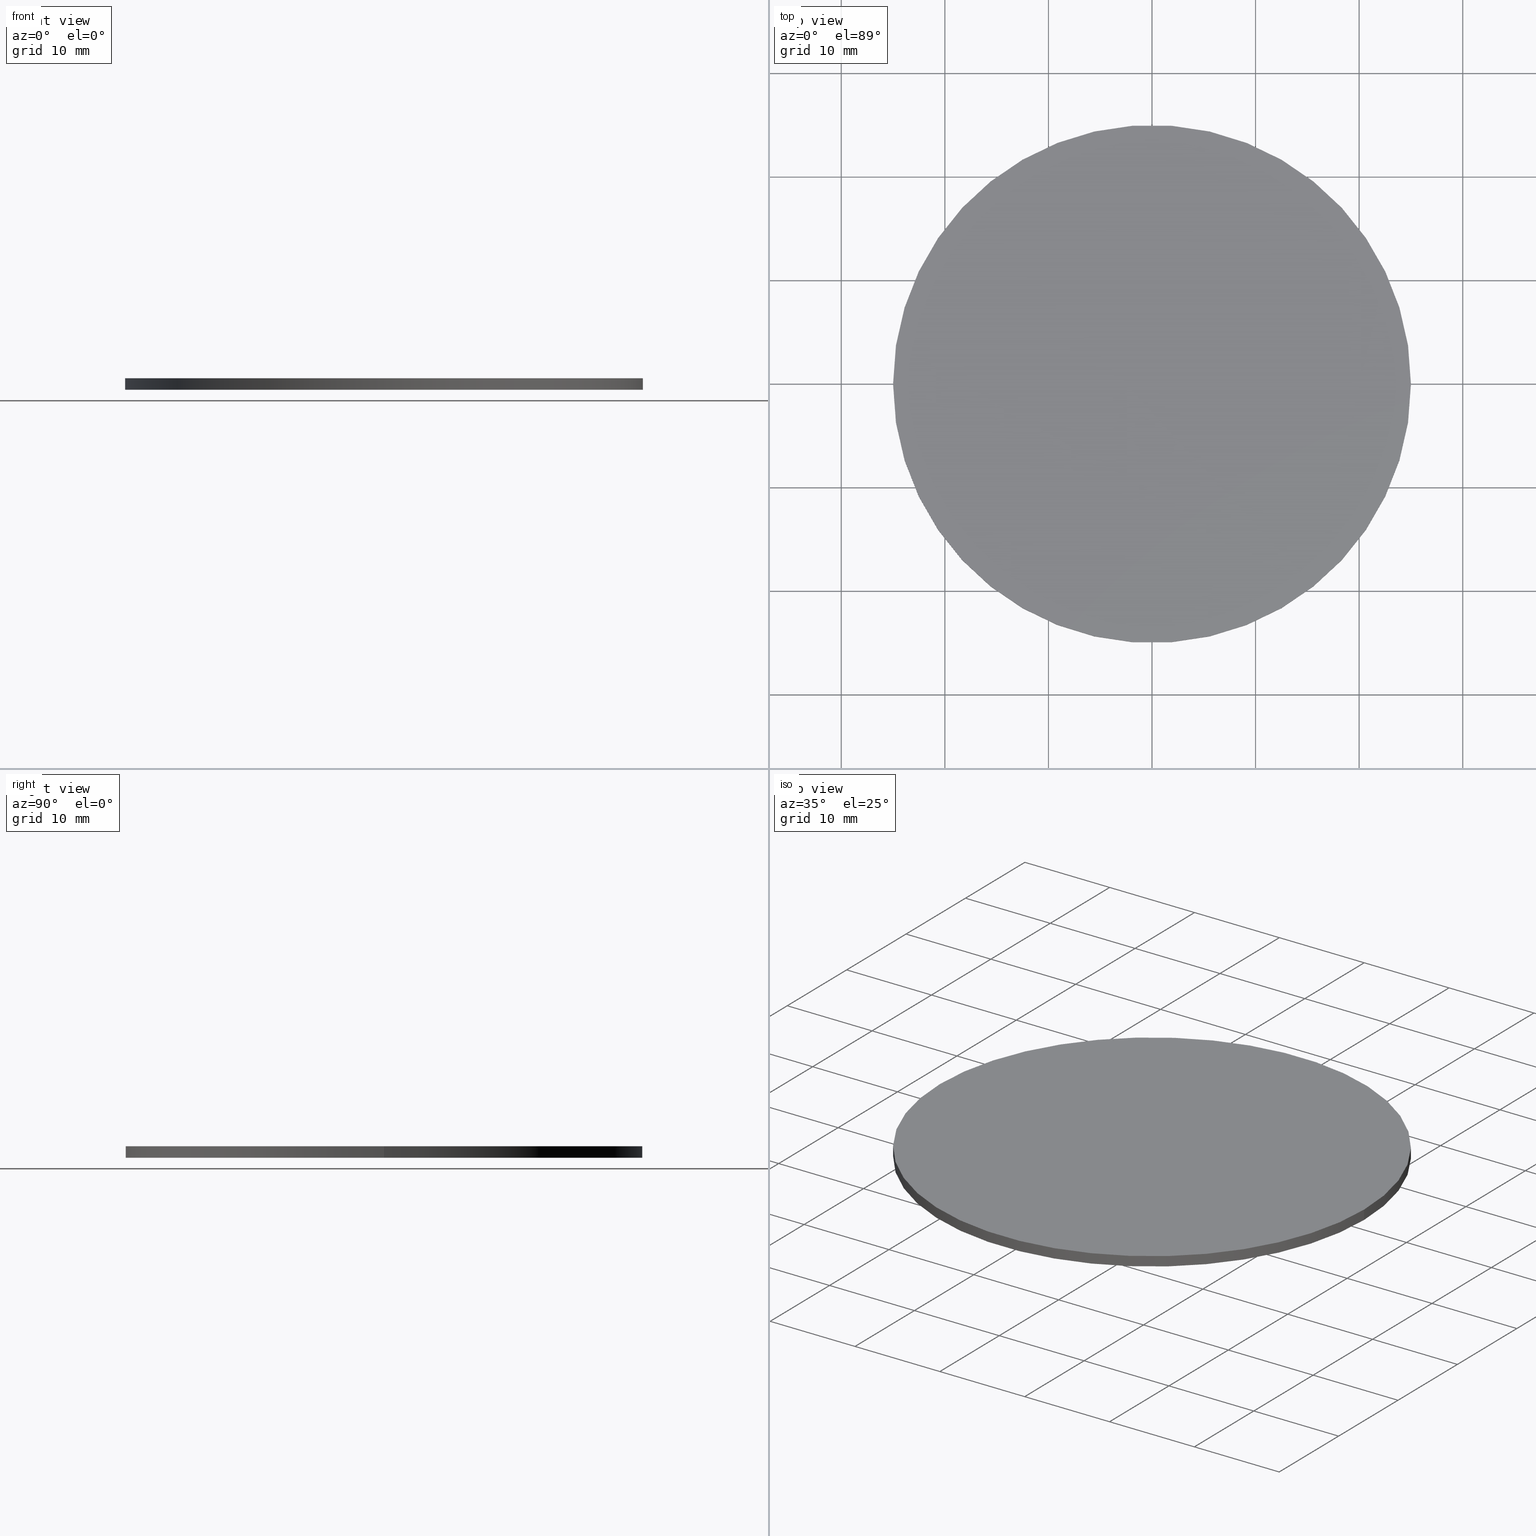
[diagram: canonical four-view strip — front | top / right | iso, engineering-drawing reading convention]
A machine part, canonical four-view strip (front | top / right | iso — engineering-drawing reading convention). The complete STEP part file that produces these views, byte-faithful:
ISO-10303-21;
HEADER;
FILE_DESCRIPTION (( 'STEP AP203' ),
    '1' );
FILE_NAME ('348510.STEP',
    '2019-07-31T07:52:57',
    ( '' ),
    ( '' ),
    'SwSTEP 2.0',
    'SolidWorks 2016',
    '' );
FILE_SCHEMA (( 'CONFIG_CONTROL_DESIGN' ));
ENDSEC;

DATA;
#1 = PERSON_AND_ORGANIZATION ( #188, #175 ) ;
#2 = DATE_AND_TIME ( #154, #213 ) ;
#3 = APPROVAL_DATE_TIME ( #151, #61 ) ;
#4 = ADVANCED_FACE ( 'NONE', ( #15 ), #6, .T. ) ;
#5 = PERSON_AND_ORGANIZATION ( #188, #175 ) ;
#6 = CYLINDRICAL_SURFACE ( 'NONE', #142, 25.00000000000000000 ) ;
#7 = DIRECTION ( 'NONE',  ( 1.000000000000000000, 0.0000000000000000000, 0.0000000000000000000 ) ) ;
#8 = APPROVAL_STATUS ( 'not_yet_approved' ) ;
#9 = DATE_AND_TIME ( #172, #187 ) ;
#10 = APPLICATION_PROTOCOL_DEFINITION ( 'international standard', 'config_control_design', 1994, #119 ) ;
#11 = VERTEX_POINT ( 'NONE', #240 ) ;
#12 = APPLICATION_PROTOCOL_DEFINITION ( 'international standard', 'config_control_design', 1994, #164 ) ;
#13 = CALENDAR_DATE ( 2019, 31, 7 ) ;
#14 = LINE ( 'NONE', #158, #18 ) ;
#15 = FACE_OUTER_BOUND ( 'NONE', #99, .T. ) ;
#16 = PRODUCT_DEFINITION_SHAPE ( 'NONE', 'NONE',  #26 ) ;
#17 = APPROVAL_PERSON_ORGANIZATION ( #149, #123, #180 ) ;
#18 = VECTOR ( 'NONE', #138, 1000.000000000000000 ) ;
#19 = EDGE_CURVE ( 'NONE', #111, #214, #25, .T. ) ;
#20 = DIRECTION ( 'NONE',  ( 0.0000000000000000000, 0.0000000000000000000, 1.000000000000000000 ) ) ;
#21 = PERSON_AND_ORGANIZATION ( #188, #175 ) ;
#22 = CC_DESIGN_APPROVAL ( #229, ( #26 ) ) ;
#23 = CARTESIAN_POINT ( 'NONE',  ( -25.00000000000000000, 0.0000000000000000000, 1.100000000000000100 ) ) ;
#24 = MECHANICAL_CONTEXT ( 'NONE', #49, 'mechanical' ) ;
#25 = LINE ( 'NONE', #23, #58 ) ;
#26 = PRODUCT_DEFINITION ( 'δ֪', '', #100, #118 ) ;
#27 = CARTESIAN_POINT ( 'NONE',  ( 0.0000000000000000000, 0.0000000000000000000, 0.0000000000000000000 ) ) ;
#28 = APPROVAL_ROLE ( '' ) ;
#29 = APPROVAL_STATUS ( 'not_yet_approved' ) ;
#30 = COORDINATED_UNIVERSAL_TIME_OFFSET ( 8, 0, .AHEAD. ) ;
#31 = LOCAL_TIME ( 15, 52, 57.00000000000000000, #37 ) ;
#32 = CC_DESIGN_PERSON_AND_ORGANIZATION_ASSIGNMENT ( #21, #246, ( #195 ) ) ;
#33 = CALENDAR_DATE ( 2019, 31, 7 ) ;
#34 = CC_DESIGN_PERSON_AND_ORGANIZATION_ASSIGNMENT ( #252, #167, ( #26 ) ) ;
#35 = CC_DESIGN_PERSON_AND_ORGANIZATION_ASSIGNMENT ( #76, #207, ( #74 ) ) ;
#36 = CALENDAR_DATE ( 2019, 31, 7 ) ;
#37 = COORDINATED_UNIVERSAL_TIME_OFFSET ( 8, 0, .AHEAD. ) ;
#38 = AXIS2_PLACEMENT_3D ( 'NONE', #27, #183, #226 ) ;
#39 = CALENDAR_DATE ( 2019, 31, 7 ) ;
#40 = ORIENTED_EDGE ( 'NONE', *, *, #19, .F. ) ;
#41 = CARTESIAN_POINT ( 'NONE',  ( -25.00000000000000000, 0.0000000000000000000, 0.0000000000000000000 ) ) ;
#42 = CC_DESIGN_PERSON_AND_ORGANIZATION_ASSIGNMENT ( #5, #224, ( #126 ) ) ;
#43 = PLANE ( 'NONE',  #38 ) ;
#44 = DESIGN_CONTEXT ( 'detailed design', #119, 'design' ) ;
#45 = ADVANCED_FACE ( 'NONE', ( #82 ), #133, .T. ) ;
#46 = PERSON_AND_ORGANIZATION ( #188, #175 ) ;
#47 = DIRECTION ( 'NONE',  ( 1.000000000000000000, 0.0000000000000000000, -0.0000000000000000000 ) ) ;
#48 = COORDINATED_UNIVERSAL_TIME_OFFSET ( 8, 0, .AHEAD. ) ;
#49 = APPLICATION_CONTEXT ( 'configuration controlled 3d designs of mechanical parts and assemblies' ) ;
#50 = EDGE_LOOP ( 'NONE', ( #242, #248 ) ) ;
#51 = DATE_TIME_ROLE ( 'creation_date' ) ;
#52 = DIRECTION ( 'NONE',  ( -0.0000000000000000000, -0.0000000000000000000, -1.000000000000000000 ) ) ;
#53 = APPLICATION_PROTOCOL_DEFINITION ( 'international standard', 'config_control_design', 1994, #49 ) ;
#54 = APPROVAL_PERSON_ORGANIZATION ( #60, #190, #212 ) ;
#55 = CIRCLE ( 'NONE', #171, 25.00000000000000000 ) ;
#56 = APPROVAL_STATUS ( 'not_yet_approved' ) ;
#57 = DATE_AND_TIME ( #168, #220 ) ;
#58 = VECTOR ( 'NONE', #79, 1000.000000000000000 ) ;
#59 = APPROVAL ( #81, 'δָ��' ) ;
#60 = PERSON_AND_ORGANIZATION ( #188, #175 ) ;
#61 = APPROVAL ( #205, 'δָ��' ) ;
#62 = CARTESIAN_POINT ( 'NONE',  ( 0.0000000000000000000, 0.0000000000000000000, 1.100000000000000100 ) ) ;
#63 = CC_DESIGN_DATE_AND_TIME_ASSIGNMENT ( #204, #51, ( #26 ) ) ;
#64 = PERSON_AND_ORGANIZATION ( #188, #175 ) ;
#65 = PERSON_AND_ORGANIZATION ( #188, #175 ) ;
#66 = PERSON_AND_ORGANIZATION_ROLE ( 'creator' ) ;
#67 = SECURITY_CLASSIFICATION_LEVEL ( 'unclassified' ) ;
#68 = DIRECTION ( 'NONE',  ( 0.0000000000000000000, 0.0000000000000000000, 1.000000000000000000 ) ) ;
#69 = ORIENTED_EDGE ( 'NONE', *, *, #80, .T. ) ;
#70 = APPROVAL_ROLE ( '' ) ;
#71 = MECHANICAL_CONTEXT ( 'NONE', #83, 'mechanical' ) ;
#72 = CC_DESIGN_APPROVAL ( #59, ( #195 ) ) ;
#73 = CC_DESIGN_PERSON_AND_ORGANIZATION_ASSIGNMENT ( #173, #108, ( #231 ) ) ;
#74 = PRODUCT ( '348510', '348510', '', ( #71 ) ) ;
#75 = DATE_AND_TIME ( #95, #129 ) ;
#76 = PERSON_AND_ORGANIZATION ( #188, #175 ) ;
#77 = AXIS2_PLACEMENT_3D ( 'NONE', #161, #103, #47 ) ;
#78 = CC_DESIGN_PERSON_AND_ORGANIZATION_ASSIGNMENT ( #1, #66, ( #236 ) ) ;
#79 = DIRECTION ( 'NONE',  ( -0.0000000000000000000, -0.0000000000000000000, -1.000000000000000000 ) ) ;
#80 = EDGE_CURVE ( 'NONE', #11, #111, #211, .T. ) ;
#81 = APPROVAL_STATUS ( 'not_yet_approved' ) ;
#82 = FACE_OUTER_BOUND ( 'NONE', #216, .T. ) ;
#83 = APPLICATION_CONTEXT ( 'configuration controlled 3d designs of mechanical parts and assemblies' ) ;
#84 = CARTESIAN_POINT ( 'NONE',  ( 0.0000000000000000000, 0.0000000000000000000, 0.0000000000000000000 ) ) ;
#85 = APPROVAL_ROLE ( '' ) ;
#86 = APPROVAL_ROLE ( '' ) ;
#87 = DATE_AND_TIME ( #253, #97 ) ;
#88 = DIRECTION ( 'NONE',  ( 1.000000000000000000, 0.0000000000000000000, 0.0000000000000000000 ) ) ;
#89 = AXIS2_PLACEMENT_3D ( 'NONE', #145, #222, #88 ) ;
#90 = COORDINATED_UNIVERSAL_TIME_OFFSET ( 8, 0, .AHEAD. ) ;
#91 = APPROVAL_PERSON_ORGANIZATION ( #65, #229, #85 ) ;
#92 = FACE_OUTER_BOUND ( 'NONE', #50, .T. ) ;
#93 = CC_DESIGN_DATE_AND_TIME_ASSIGNMENT ( #87, #249, ( #236 ) ) ;
#94 = CC_DESIGN_PERSON_AND_ORGANIZATION_ASSIGNMENT ( #64, #102, ( #140 ) ) ;
#95 = CALENDAR_DATE ( 2019, 31, 7 ) ;
#96 = CIRCLE ( 'NONE', #89, 25.00000000000000000 ) ;
#97 = LOCAL_TIME ( 15, 52, 57.00000000000000000, #90 ) ;
#98 = SHAPE_DEFINITION_REPRESENTATION ( #112, #179 ) ;
#99 = EDGE_LOOP ( 'NONE', ( #234, #225, #198, #40 ) ) ;
#100 = PRODUCT_DEFINITION_FORMATION_WITH_SPECIFIED_SOURCE ( '�κ�', '', #231, .NOT_KNOWN. ) ;
#101 = PERSON_AND_ORGANIZATION ( #188, #175 ) ;
#102 = PERSON_AND_ORGANIZATION_ROLE ( 'creator' ) ;
#103 = DIRECTION ( 'NONE',  ( 0.0000000000000000000, 0.0000000000000000000, 1.000000000000000000 ) ) ;
#104 =( NAMED_UNIT ( * ) PLANE_ANGLE_UNIT ( ) SI_UNIT ( $, .RADIAN. ) );
#105 = DIRECTION ( 'NONE',  ( 1.000000000000000000, 0.0000000000000000000, 0.0000000000000000000 ) ) ;
#106 = COORDINATED_UNIVERSAL_TIME_OFFSET ( 8, 0, .AHEAD. ) ;
#107 = ORIENTED_EDGE ( 'NONE', *, *, #128, .F. ) ;
#108 = PERSON_AND_ORGANIZATION_ROLE ( 'design_owner' ) ;
#109 = CC_DESIGN_DATE_AND_TIME_ASSIGNMENT ( #144, #117, ( #126 ) ) ;
#110 = APPROVAL_DATE_TIME ( #57, #190 ) ;
#111 = VERTEX_POINT ( 'NONE', #162 ) ;
#112 = PRODUCT_DEFINITION_SHAPE ( 'NONE', 'NONE',  #236 ) ;
#113 = LOCAL_TIME ( 15, 52, 57.00000000000000000, #209 ) ;
#114 = CLOSED_SHELL ( 'NONE', ( #4, #223, #45, #199 ) ) ;
#115 = DIRECTION ( 'NONE',  ( -0.0000000000000000000, -0.0000000000000000000, -1.000000000000000000 ) ) ;
#116 =( NAMED_UNIT ( * ) SI_UNIT ( $, .STERADIAN. ) SOLID_ANGLE_UNIT ( ) );
#117 = DATE_TIME_ROLE ( 'classification_date' ) ;
#118 = DESIGN_CONTEXT ( 'detailed design', #164, 'design' ) ;
#119 = APPLICATION_CONTEXT ( 'configuration controlled 3d designs of mechanical parts and assemblies' ) ;
#120 = DIRECTION ( 'NONE',  ( 1.000000000000000000, 0.0000000000000000000, 0.0000000000000000000 ) ) ;
#121 = DATE_TIME_ROLE ( 'classification_date' ) ;
#122 = PERSON_AND_ORGANIZATION ( #188, #175 ) ;
#123 = APPROVAL ( #56, 'δָ��' ) ;
#124 = VERTEX_POINT ( 'NONE', #243 ) ;
#125 = CC_DESIGN_APPROVAL ( #61, ( #140 ) ) ;
#126 = SECURITY_CLASSIFICATION ( '', '', #67 ) ;
#127 = CC_DESIGN_APPROVAL ( #190, ( #236 ) ) ;
#128 = EDGE_CURVE ( 'NONE', #11, #124, #14, .T. ) ;
#129 = LOCAL_TIME ( 15, 52, 57.00000000000000000, #197 ) ;
#130 = EDGE_LOOP ( 'NONE', ( #107, #160, #170, #152 ) ) ;
#131 = UNCERTAINTY_MEASURE_WITH_UNIT (LENGTH_MEASURE( 1.000000000000000100E-005 ), #210, 'distance_accuracy_value', 'NONE');
#132 = PERSON_AND_ORGANIZATION ( #188, #175 ) ;
#133 = PLANE ( 'NONE',  #77 ) ;
#134 = CC_DESIGN_APPROVAL ( #123, ( #100 ) ) ;
#135 = LOCAL_TIME ( 15, 52, 57.00000000000000000, #30 ) ;
#136 = APPROVAL ( #8, 'δָ��' ) ;
#137 = CIRCLE ( 'NONE', #155, 25.00000000000000000 ) ;
#138 = DIRECTION ( 'NONE',  ( -0.0000000000000000000, -0.0000000000000000000, -1.000000000000000000 ) ) ;
#139 = PERSON_AND_ORGANIZATION_ROLE ( 'design_supplier' ) ;
#140 = PRODUCT_DEFINITION_FORMATION_WITH_SPECIFIED_SOURCE ( '�κ�', '', #74, .NOT_KNOWN. ) ;
#141 = CARTESIAN_POINT ( 'NONE',  ( 0.0000000000000000000, 0.0000000000000000000, 1.100000000000000100 ) ) ;
#142 = AXIS2_PLACEMENT_3D ( 'NONE', #62, #115, #177 ) ;
#143 = APPROVAL_STATUS ( 'not_yet_approved' ) ;
#144 = DATE_AND_TIME ( #203, #135 ) ;
#145 = CARTESIAN_POINT ( 'NONE',  ( 0.0000000000000000000, 0.0000000000000000000, 0.0000000000000000000 ) ) ;
#146 = CYLINDRICAL_SURFACE ( 'NONE', #193, 25.00000000000000000 ) ;
#147 = CARTESIAN_POINT ( 'NONE',  ( 0.0000000000000000000, 0.0000000000000000000, 0.0000000000000000000 ) ) ;
#148 = LOCAL_TIME ( 15, 52, 57.00000000000000000, #106 ) ;
#149 = PERSON_AND_ORGANIZATION ( #188, #175 ) ;
#150 = EDGE_CURVE ( 'NONE', #124, #214, #137, .T. ) ;
#151 = DATE_AND_TIME ( #36, #113 ) ;
#152 = ORIENTED_EDGE ( 'NONE', *, *, #221, .T. ) ;
#153 = DATE_AND_TIME ( #13, #148 ) ;
#154 = CALENDAR_DATE ( 2019, 31, 7 ) ;
#155 = AXIS2_PLACEMENT_3D ( 'NONE', #84, #165, #208 ) ;
#156 = APPROVAL_PERSON_ORGANIZATION ( #132, #59, #70 ) ;
#157 = CC_DESIGN_PERSON_AND_ORGANIZATION_ASSIGNMENT ( #230, #139, ( #140 ) ) ;
#158 = CARTESIAN_POINT ( 'NONE',  ( 25.00000000000000000, 3.061616997868383000E-015, 1.100000000000000100 ) ) ;
#159 = PRODUCT_RELATED_PRODUCT_CATEGORY ( 'detail', '', ( #74 ) ) ;
#160 = ORIENTED_EDGE ( 'NONE', *, *, #250, .F. ) ;
#161 = CARTESIAN_POINT ( 'NONE',  ( 0.0000000000000000000, 0.0000000000000000000, 1.100000000000000100 ) ) ;
#162 = CARTESIAN_POINT ( 'NONE',  ( -25.00000000000000000, 0.0000000000000000000, 1.100000000000000100 ) ) ;
#163 = CARTESIAN_POINT ( 'NONE',  ( 0.0000000000000000000, 0.0000000000000000000, 1.100000000000000100 ) ) ;
#164 = APPLICATION_CONTEXT ( 'configuration controlled 3d designs of mechanical parts and assemblies' ) ;
#165 = DIRECTION ( 'NONE',  ( 0.0000000000000000000, 0.0000000000000000000, 1.000000000000000000 ) ) ;
#166 = MANIFOLD_SOLID_BREP ( '͹̨-����1', #114 ) ;
#167 = PERSON_AND_ORGANIZATION_ROLE ( 'creator' ) ;
#168 = CALENDAR_DATE ( 2019, 31, 7 ) ;
#169 = CC_DESIGN_PERSON_AND_ORGANIZATION_ASSIGNMENT ( #122, #228, ( #100 ) ) ;
#170 = ORIENTED_EDGE ( 'NONE', *, *, #19, .T. ) ;
#171 = AXIS2_PLACEMENT_3D ( 'NONE', #141, #241, #105 ) ;
#172 = CALENDAR_DATE ( 2019, 31, 7 ) ;
#173 = PERSON_AND_ORGANIZATION ( #188, #175 ) ;
#174 = AXIS2_PLACEMENT_3D ( 'NONE', #202, #20, #176 ) ;
#175 = ORGANIZATION ( 'δָ��', 'δָ��', '' ) ;
#176 = DIRECTION ( 'NONE',  ( 1.000000000000000000, 0.0000000000000000000, 0.0000000000000000000 ) ) ;
#177 = DIRECTION ( 'NONE',  ( -1.000000000000000000, 0.0000000000000000000, 0.0000000000000000000 ) ) ;
#178 = CC_DESIGN_PERSON_AND_ORGANIZATION_ASSIGNMENT ( #215, #186, ( #100 ) ) ;
#179 = ADVANCED_BREP_SHAPE_REPRESENTATION ( '348510', ( #166, #218 ), #206 ) ;
#180 = APPROVAL_ROLE ( '' ) ;
#181 = SECURITY_CLASSIFICATION_LEVEL ( 'unclassified' ) ;
#182 = CARTESIAN_POINT ( 'NONE',  ( 0.0000000000000000000, 0.0000000000000000000, 0.0000000000000000000 ) ) ;
#183 = DIRECTION ( 'NONE',  ( 0.0000000000000000000, 0.0000000000000000000, 1.000000000000000000 ) ) ;
#184 = AXIS2_PLACEMENT_3D ( 'NONE', #147, #185, #7 ) ;
#185 = DIRECTION ( 'NONE',  ( 0.0000000000000000000, 0.0000000000000000000, 1.000000000000000000 ) ) ;
#186 = PERSON_AND_ORGANIZATION_ROLE ( 'design_supplier' ) ;
#187 = LOCAL_TIME ( 15, 52, 57.00000000000000000, #194 ) ;
#188 = PERSON ( 'δָ��', 'δָ��', 'δָ��', ('δָ��'), ('δָ��'), ('δָ��') ) ;
#189 = PRODUCT_RELATED_PRODUCT_CATEGORY ( 'detail', '', ( #231 ) ) ;
#190 = APPROVAL ( #143, 'δָ��' ) ;
#191 = APPROVAL_PERSON_ORGANIZATION ( #101, #61, #86 ) ;
#192 = FACE_OUTER_BOUND ( 'NONE', #130, .T. ) ;
#193 = AXIS2_PLACEMENT_3D ( 'NONE', #163, #52, #245 ) ;
#194 = COORDINATED_UNIVERSAL_TIME_OFFSET ( 8, 0, .AHEAD. ) ;
#195 = SECURITY_CLASSIFICATION ( '', '', #181 ) ;
#196 = APPROVAL_DATE_TIME ( #75, #123 ) ;
#197 = COORDINATED_UNIVERSAL_TIME_OFFSET ( 8, 0, .AHEAD. ) ;
#198 = ORIENTED_EDGE ( 'NONE', *, *, #150, .T. ) ;
#199 = ADVANCED_FACE ( 'NONE', ( #92 ), #43, .F. ) ;
#200 = COORDINATED_UNIVERSAL_TIME_OFFSET ( 8, 0, .AHEAD. ) ;
#201 = ORIENTED_EDGE ( 'NONE', *, *, #250, .T. ) ;
#202 = CARTESIAN_POINT ( 'NONE',  ( 0.0000000000000000000, 0.0000000000000000000, 1.100000000000000100 ) ) ;
#203 = CALENDAR_DATE ( 2019, 31, 7 ) ;
#204 = DATE_AND_TIME ( #33, #31 ) ;
#205 = APPROVAL_STATUS ( 'not_yet_approved' ) ;
#206 =( GEOMETRIC_REPRESENTATION_CONTEXT ( 3 ) GLOBAL_UNCERTAINTY_ASSIGNED_CONTEXT ( ( #131 ) ) GLOBAL_UNIT_ASSIGNED_CONTEXT ( ( #210, #104, #116 ) ) REPRESENTATION_CONTEXT ( 'NONE', 'WORKASPACE' ) );
#207 = PERSON_AND_ORGANIZATION_ROLE ( 'design_owner' ) ;
#208 = DIRECTION ( 'NONE',  ( 1.000000000000000000, 0.0000000000000000000, 0.0000000000000000000 ) ) ;
#209 = COORDINATED_UNIVERSAL_TIME_OFFSET ( 8, 0, .AHEAD. ) ;
#210 =( LENGTH_UNIT ( ) NAMED_UNIT ( * ) SI_UNIT ( .MILLI., .METRE. ) );
#211 = CIRCLE ( 'NONE', #174, 25.00000000000000000 ) ;
#212 = APPROVAL_ROLE ( '' ) ;
#213 = LOCAL_TIME ( 15, 52, 57.00000000000000000, #48 ) ;
#214 = VERTEX_POINT ( 'NONE', #41 ) ;
#215 = PERSON_AND_ORGANIZATION ( #188, #175 ) ;
#216 = EDGE_LOOP ( 'NONE', ( #201, #69 ) ) ;
#217 = LOCAL_TIME ( 15, 52, 57.00000000000000000, #238 ) ;
#218 = AXIS2_PLACEMENT_3D ( 'NONE', #182, #68, #120 ) ;
#219 = CC_DESIGN_DATE_AND_TIME_ASSIGNMENT ( #9, #121, ( #195 ) ) ;
#220 = LOCAL_TIME ( 15, 52, 57.00000000000000000, #200 ) ;
#221 = EDGE_CURVE ( 'NONE', #214, #124, #96, .T. ) ;
#222 = DIRECTION ( 'NONE',  ( 0.0000000000000000000, 0.0000000000000000000, 1.000000000000000000 ) ) ;
#223 = ADVANCED_FACE ( 'NONE', ( #192 ), #146, .T. ) ;
#224 = PERSON_AND_ORGANIZATION_ROLE ( 'classification_officer' ) ;
#225 = ORIENTED_EDGE ( 'NONE', *, *, #128, .T. ) ;
#226 = DIRECTION ( 'NONE',  ( 1.000000000000000000, 0.0000000000000000000, -0.0000000000000000000 ) ) ;
#227 = CC_DESIGN_APPROVAL ( #136, ( #126 ) ) ;
#228 = PERSON_AND_ORGANIZATION_ROLE ( 'creator' ) ;
#229 = APPROVAL ( #29, 'δָ��' ) ;
#230 = PERSON_AND_ORGANIZATION ( #188, #175 ) ;
#231 = PRODUCT ( '348510', '348510', '', ( #24 ) ) ;
#232 = CC_DESIGN_SECURITY_CLASSIFICATION ( #195, ( #100 ) ) ;
#233 = APPROVAL_DATE_TIME ( #2, #229 ) ;
#234 = ORIENTED_EDGE ( 'NONE', *, *, #80, .F. ) ;
#235 = APPROVAL_PERSON_ORGANIZATION ( #46, #136, #28 ) ;
#236 = PRODUCT_DEFINITION ( 'δ֪', '', #140, #44 ) ;
#237 = CC_DESIGN_SECURITY_CLASSIFICATION ( #126, ( #140 ) ) ;
#238 = COORDINATED_UNIVERSAL_TIME_OFFSET ( 8, 0, .AHEAD. ) ;
#239 = APPROVAL_DATE_TIME ( #153, #59 ) ;
#240 = CARTESIAN_POINT ( 'NONE',  ( 25.00000000000000000, 3.061616997868383000E-015, 1.100000000000000100 ) ) ;
#241 = DIRECTION ( 'NONE',  ( 0.0000000000000000000, 0.0000000000000000000, 1.000000000000000000 ) ) ;
#242 = ORIENTED_EDGE ( 'NONE', *, *, #221, .F. ) ;
#243 = CARTESIAN_POINT ( 'NONE',  ( 25.00000000000000000, 3.061616997868383000E-015, 0.0000000000000000000 ) ) ;
#244 = APPLICATION_PROTOCOL_DEFINITION ( 'international standard', 'config_control_design', 1994, #83 ) ;
#245 = DIRECTION ( 'NONE',  ( -1.000000000000000000, 0.0000000000000000000, 0.0000000000000000000 ) ) ;
#246 = PERSON_AND_ORGANIZATION_ROLE ( 'classification_officer' ) ;
#247 = APPROVAL_DATE_TIME ( #251, #136 ) ;
#248 = ORIENTED_EDGE ( 'NONE', *, *, #150, .F. ) ;
#249 = DATE_TIME_ROLE ( 'creation_date' ) ;
#250 = EDGE_CURVE ( 'NONE', #111, #11, #55, .T. ) ;
#251 = DATE_AND_TIME ( #39, #217 ) ;
#252 = PERSON_AND_ORGANIZATION ( #188, #175 ) ;
#253 = CALENDAR_DATE ( 2019, 31, 7 ) ;
ENDSEC;
END-ISO-10303-21;
